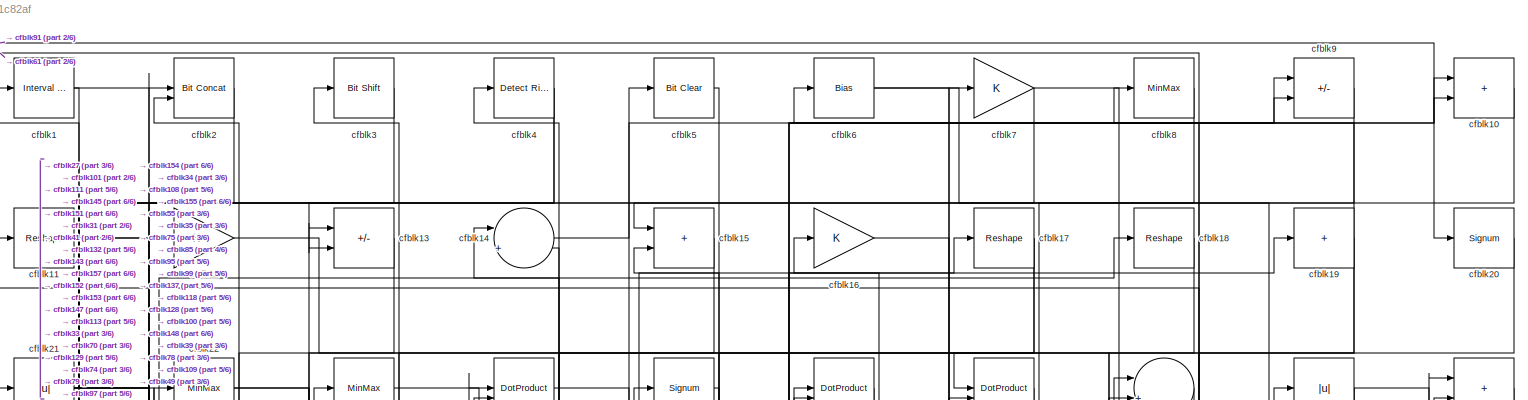
[diagram: root canvas - part 1/6, full width, top band]
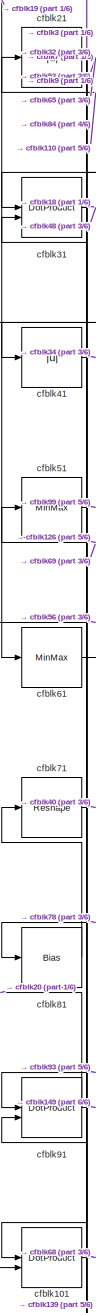
[diagram: root canvas - part 2/6, middle left region]
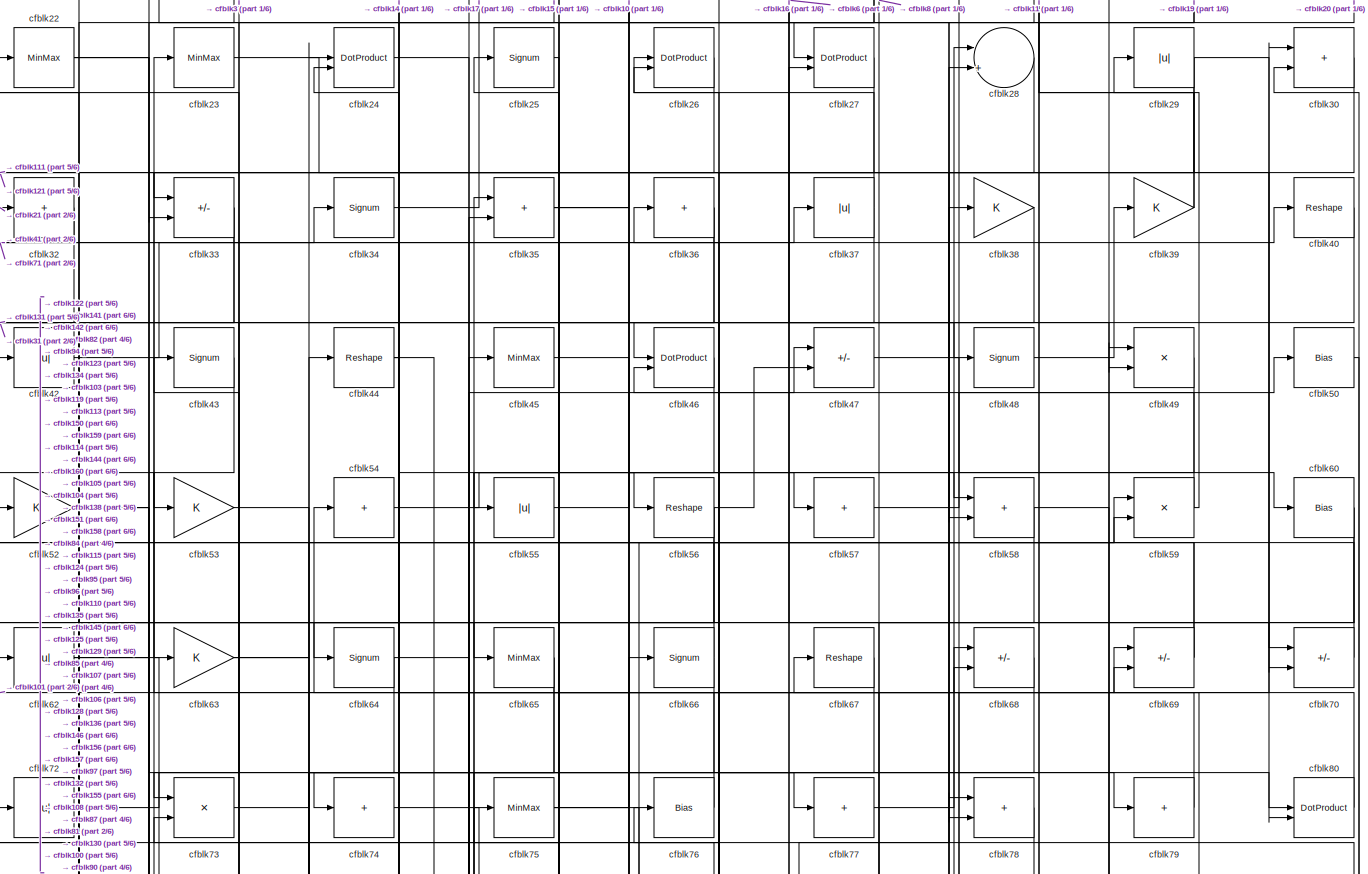
[diagram: root canvas - part 3/6, full width, top band]
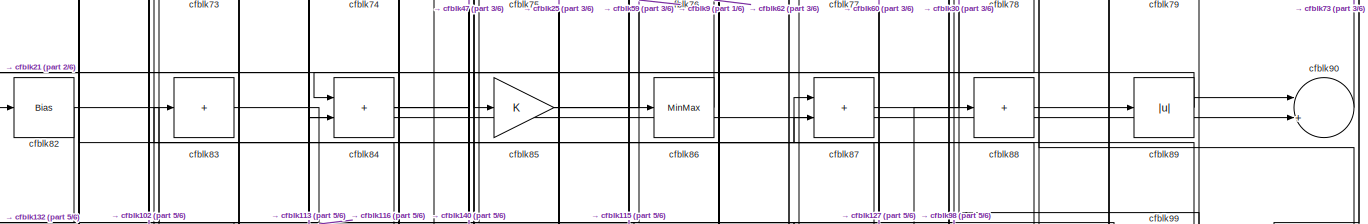
[diagram: root canvas - part 4/6, full width, middle band]
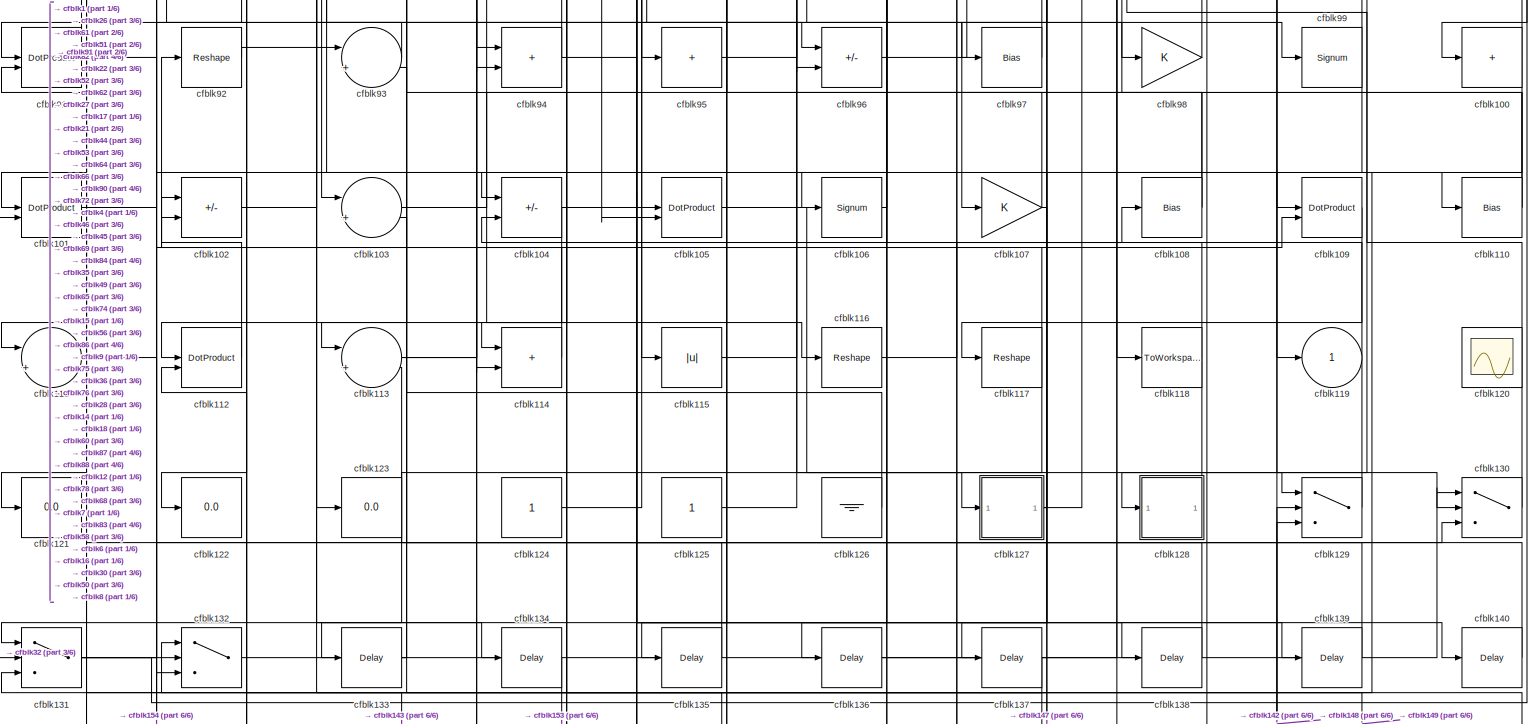
[diagram: root canvas - part 5/6, full width, bottom band]
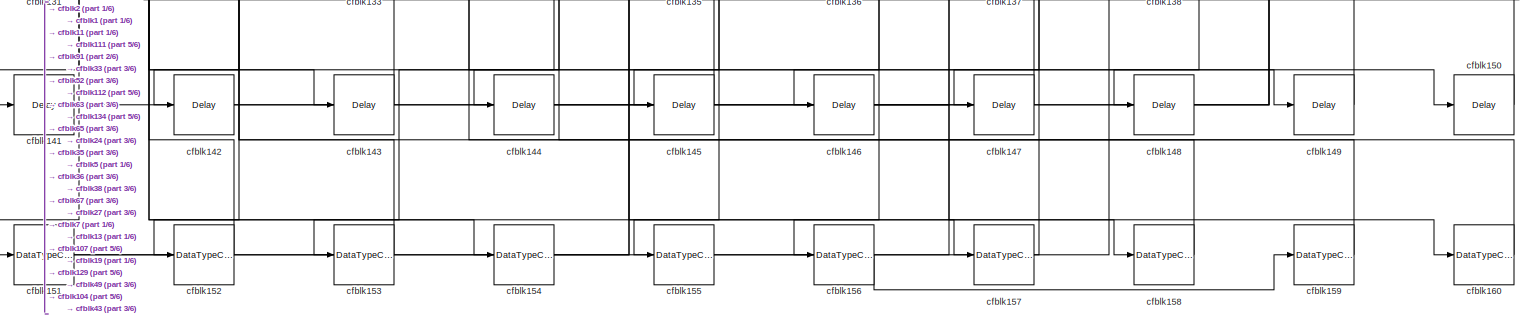
[diagram: root canvas - part 6/6, full width, bottom band]
MODEL slx_de579f1c82af
KIND model
CONFIG AbsTol = auto
CONFIG EnableMultiTasking = off
CONFIG FixedStep = auto
CONFIG MaxStep = auto
CONFIG MinStep = auto
CONFIG RelTol = 1e-3
CONFIG SampleTimeConstraint = Unconstrained
CONFIG SolverName = VariableStepAuto
CONFIG StartTime = 0.0
CONFIG StopTime = 10.0
BLOCK [Reference] cfblk1  REF=hdlsllib/Logic and Bit
Operations/Interval Test
  SourceBlock = hdlsllib/Logic and Bit\nOperations/Interval Test
  SourceType = Interval Test
BLOCK [Sum] cfblk10
  IconShape = rectangular
BLOCK [Sum] cfblk100
  IconShape = rectangular
  Inputs = +
BLOCK [DotProduct] cfblk101
  OutDataTypeStr = Inherit: Inherit via internal rule
BLOCK [Sum] cfblk102
  IconShape = rectangular
  Inputs = +-
BLOCK [Sum] cfblk103
  Inputs = |++
BLOCK [Sum] cfblk104
  IconShape = rectangular
  Inputs = +-
BLOCK [DotProduct] cfblk105
  OutDataTypeStr = Inherit: Inherit via internal rule
BLOCK [Signum] cfblk106
BLOCK [Gain] cfblk107
BLOCK [Bias] cfblk108
  Bias = 0.0
  SaturateOnIntegerOverflow = off
BLOCK [DotProduct] cfblk109
  OutDataTypeStr = Inherit: Inherit via internal rule
BLOCK [Reshape] cfblk11
BLOCK [Bias] cfblk110
  Bias = 0.0
  SaturateOnIntegerOverflow = off
BLOCK [Sum] cfblk111
  Inputs = |++
BLOCK [DotProduct] cfblk112
  OutDataTypeStr = Inherit: Inherit via internal rule
BLOCK [Sum] cfblk113
  Inputs = |++
BLOCK [Sum] cfblk114
  IconShape = rectangular
BLOCK [Abs] cfblk115
  SaturateOnIntegerOverflow = off
BLOCK [Reshape] cfblk116
BLOCK [Reshape] cfblk117
BLOCK [ToWorkspace] cfblk118
  MaxDataPoints = inf
  SampleTime = -1
  SaveFormat = Timeseries
  VariableName = simout
BLOCK [Outport] cfblk119
  VectorParamsAs1DForOutWhenUnconnected = off
BLOCK [Gain] cfblk12
BLOCK [Scope] cfblk120
  Floating = on
  NumInputPorts = 1
  ScopeSpecificationString = Simulink.scopes.TimeScopeBlockCfg('CurrentConfiguration', extmgr.ConfigurationSet(extmgr.Configuration('Core','General UI',true,'FigureColor',[0.156862745098039 0.156862745098039 0.156862745098039]),extmgr.Configuration('Core','Source UI',true),extmgr.Configuration('Sources','WiredSimulink',true,'DataLoggingVariableName','ScopeData1','DataLoggingSaveFormat','StructureWithTime','DataLoggingLimitDat...<+2713ch>
BLOCK [Display] cfblk121
  Decimation = 1
BLOCK [Display] cfblk122
  Decimation = 1
BLOCK [Display] cfblk123
  Decimation = 1
BLOCK [Constant] cfblk124
  SampleTime = -1
BLOCK [Constant] cfblk125
  SampleTime = -1
BLOCK [Ground] cfblk126
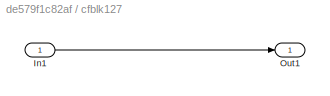
BLOCK [SubSystem] cfblk127
  LibrarySourceBlock = hdlsllib/Ports &\nSubsystems/Subsystem
BLOCK [Inport] cfblk127/In1
BLOCK [Outport] cfblk127/Out1
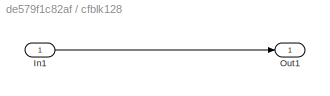
BLOCK [SubSystem] cfblk128
  LibrarySourceBlock = hdlsllib/Ports &\nSubsystems/Subsystem
BLOCK [Inport] cfblk128/In1
BLOCK [Outport] cfblk128/Out1
BLOCK [Switch] cfblk129
  InputSameDT = off
  SaturateOnIntegerOverflow = off
BLOCK [Sum] cfblk13
  IconShape = rectangular
  Inputs = +-
BLOCK [Switch] cfblk130
  InputSameDT = off
  SaturateOnIntegerOverflow = off
BLOCK [Switch] cfblk131
  InputSameDT = off
  SaturateOnIntegerOverflow = off
BLOCK [Switch] cfblk132
  InputSameDT = off
  SaturateOnIntegerOverflow = off
BLOCK [Delay] cfblk133
  InputPortMap = u0
  SampleTime = 1
BLOCK [Delay] cfblk134
  InputPortMap = u0
  SampleTime = 1
BLOCK [Delay] cfblk135
  InputPortMap = u0
  SampleTime = 1
BLOCK [Delay] cfblk136
  InputPortMap = u0
  SampleTime = 1
BLOCK [Delay] cfblk137
  InputPortMap = u0
  SampleTime = 1
BLOCK [Delay] cfblk138
  InputPortMap = u0
  SampleTime = 1
BLOCK [Delay] cfblk139
  InputPortMap = u0
  SampleTime = 1
BLOCK [Sum] cfblk14
  Inputs = |++
BLOCK [Delay] cfblk140
  InputPortMap = u0
  SampleTime = 1
BLOCK [Delay] cfblk141
  InputPortMap = u0
  SampleTime = 1
BLOCK [Delay] cfblk142
  InputPortMap = u0
  SampleTime = 1
BLOCK [Delay] cfblk143
  InputPortMap = u0
  SampleTime = 1
BLOCK [Delay] cfblk144
  InputPortMap = u0
  SampleTime = 1
BLOCK [Delay] cfblk145
  InputPortMap = u0
  SampleTime = 1
BLOCK [Delay] cfblk146
  InputPortMap = u0
  SampleTime = 1
BLOCK [Delay] cfblk147
  InputPortMap = u0
  SampleTime = 1
BLOCK [Delay] cfblk148
  InputPortMap = u0
  SampleTime = 1
BLOCK [Delay] cfblk149
  InputPortMap = u0
  SampleTime = 1
BLOCK [Sum] cfblk15
  IconShape = rectangular
BLOCK [Delay] cfblk150
  InputPortMap = u0
  SampleTime = 1
BLOCK [DataTypeConversion] cfblk151
  RndMeth = Floor
  SaturateOnIntegerOverflow = off
BLOCK [DataTypeConversion] cfblk152
  OutDataTypeStr = uint8
  RndMeth = Floor
  SaturateOnIntegerOverflow = off
BLOCK [DataTypeConversion] cfblk153
  OutDataTypeStr = uint8
  RndMeth = Floor
  SaturateOnIntegerOverflow = off
BLOCK [DataTypeConversion] cfblk154
  OutDataTypeStr = boolean
  RndMeth = Floor
  SaturateOnIntegerOverflow = off
BLOCK [DataTypeConversion] cfblk155
  OutDataTypeStr = uint8
  RndMeth = Floor
  SaturateOnIntegerOverflow = off
BLOCK [DataTypeConversion] cfblk156
  OutDataTypeStr = uint8
  RndMeth = Floor
  SaturateOnIntegerOverflow = off
BLOCK [DataTypeConversion] cfblk157
  OutDataTypeStr = uint8
  RndMeth = Floor
  SaturateOnIntegerOverflow = off
BLOCK [DataTypeConversion] cfblk158
  OutDataTypeStr = uint8
  RndMeth = Floor
  SaturateOnIntegerOverflow = off
BLOCK [DataTypeConversion] cfblk159
  OutDataTypeStr = uint8
  RndMeth = Floor
  SaturateOnIntegerOverflow = off
BLOCK [Gain] cfblk16
BLOCK [DataTypeConversion] cfblk160
  OutDataTypeStr = uint8
  RndMeth = Floor
  SaturateOnIntegerOverflow = off
BLOCK [Reshape] cfblk17
BLOCK [Reshape] cfblk18
BLOCK [Sum] cfblk19
  IconShape = rectangular
  Inputs = +
BLOCK [Reference] cfblk2  REF=hdlsllib/Logic and Bit
Operations/Bit Concat
  SourceBlock = hdlsllib/Logic and Bit\nOperations/Bit Concat
  SourceType = Bit Concat
BLOCK [Signum] cfblk20
BLOCK [Abs] cfblk21
  SaturateOnIntegerOverflow = off
BLOCK [MinMax] cfblk22
BLOCK [MinMax] cfblk23
BLOCK [DotProduct] cfblk24
  OutDataTypeStr = Inherit: Inherit via internal rule
BLOCK [Signum] cfblk25
BLOCK [DotProduct] cfblk26
  OutDataTypeStr = Inherit: Inherit via internal rule
BLOCK [DotProduct] cfblk27
  OutDataTypeStr = Inherit: Inherit via internal rule
BLOCK [Sum] cfblk28
  Inputs = |++
BLOCK [Abs] cfblk29
  SaturateOnIntegerOverflow = off
BLOCK [Reference] cfblk3  REF=hdlsllib/Logic and Bit
Operations/Bit Shift
  SourceBlock = hdlsllib/Logic and Bit\nOperations/Bit Shift
  SourceType = Bit Shift
BLOCK [Sum] cfblk30
  IconShape = rectangular
BLOCK [DotProduct] cfblk31
  OutDataTypeStr = Inherit: Inherit via internal rule
BLOCK [Sum] cfblk32
  IconShape = rectangular
  Inputs = +
BLOCK [Sum] cfblk33
  IconShape = rectangular
  Inputs = +-
BLOCK [Signum] cfblk34
BLOCK [Sum] cfblk35
  IconShape = rectangular
BLOCK [Sum] cfblk36
  IconShape = rectangular
  Inputs = +
BLOCK [Abs] cfblk37
  SaturateOnIntegerOverflow = off
BLOCK [Gain] cfblk38
BLOCK [Gain] cfblk39
BLOCK [Reference] cfblk4  REF=hdlsllib/Logic and Bit
Operations/Detect Rise
Nonnegative
  SourceBlock = hdlsllib/Logic and Bit\nOperations/Detect Rise\nNonnegative
  SourceType = Detect Rise Nonnegative
BLOCK [Reshape] cfblk40
BLOCK [Abs] cfblk41
  SaturateOnIntegerOverflow = off
BLOCK [Abs] cfblk42
  SaturateOnIntegerOverflow = off
BLOCK [Signum] cfblk43
BLOCK [Reshape] cfblk44
BLOCK [MinMax] cfblk45
BLOCK [DotProduct] cfblk46
  OutDataTypeStr = Inherit: Inherit via internal rule
BLOCK [Sum] cfblk47
  IconShape = rectangular
  Inputs = +-
BLOCK [Signum] cfblk48
BLOCK [Product] cfblk49
  Inputs = */
  RndMeth = Zero
  SaturateOnIntegerOverflow = on
BLOCK [Reference] cfblk5  REF=simulink/Logic and Bit
Operations/Bit Clear
  LibrarySourceBlock = hdlsllib/Logic and Bit\nOperations/Bit Clear
  SourceBlock = simulink/Logic and Bit\nOperations/Bit Clear
  SourceType = Bit Clear
BLOCK [Bias] cfblk50
  Bias = 0.0
  SaturateOnIntegerOverflow = off
BLOCK [MinMax] cfblk51
BLOCK [Gain] cfblk52
BLOCK [Gain] cfblk53
BLOCK [Sum] cfblk54
  IconShape = rectangular
  Inputs = +
BLOCK [Abs] cfblk55
  SaturateOnIntegerOverflow = off
BLOCK [Reshape] cfblk56
BLOCK [Sum] cfblk57
  IconShape = rectangular
  Inputs = +
BLOCK [Sum] cfblk58
  IconShape = rectangular
BLOCK [Product] cfblk59
  Inputs = */
  RndMeth = Zero
  SaturateOnIntegerOverflow = on
BLOCK [Bias] cfblk6
  Bias = 0.0
  SaturateOnIntegerOverflow = off
BLOCK [Bias] cfblk60
  Bias = 0.0
  SaturateOnIntegerOverflow = off
BLOCK [MinMax] cfblk61
BLOCK [Abs] cfblk62
  SaturateOnIntegerOverflow = off
BLOCK [Gain] cfblk63
BLOCK [Signum] cfblk64
BLOCK [MinMax] cfblk65
BLOCK [Signum] cfblk66
BLOCK [Reshape] cfblk67
BLOCK [Sum] cfblk68
  IconShape = rectangular
  Inputs = +-
BLOCK [Sum] cfblk69
  IconShape = rectangular
  Inputs = +-
BLOCK [Gain] cfblk7
BLOCK [Sum] cfblk70
  IconShape = rectangular
  Inputs = +-
BLOCK [Reshape] cfblk71
BLOCK [Abs] cfblk72
  SaturateOnIntegerOverflow = off
BLOCK [Product] cfblk73
  Inputs = */
  RndMeth = Zero
  SaturateOnIntegerOverflow = on
BLOCK [Sum] cfblk74
  IconShape = rectangular
  Inputs = +
BLOCK [MinMax] cfblk75
BLOCK [Bias] cfblk76
  Bias = 0.0
  SaturateOnIntegerOverflow = off
BLOCK [Sum] cfblk77
  IconShape = rectangular
  Inputs = +
BLOCK [Sum] cfblk78
  IconShape = rectangular
BLOCK [Sum] cfblk79
  IconShape = rectangular
  Inputs = +
BLOCK [MinMax] cfblk8
BLOCK [DotProduct] cfblk80
  OutDataTypeStr = Inherit: Inherit via internal rule
BLOCK [Bias] cfblk81
  Bias = 0.0
  SaturateOnIntegerOverflow = off
BLOCK [Bias] cfblk82
  Bias = 0.0
  SaturateOnIntegerOverflow = off
BLOCK [Sum] cfblk83
  IconShape = rectangular
  Inputs = +
BLOCK [Sum] cfblk84
  IconShape = rectangular
BLOCK [Gain] cfblk85
BLOCK [MinMax] cfblk86
BLOCK [Sum] cfblk87
  IconShape = rectangular
BLOCK [Sum] cfblk88
  IconShape = rectangular
  Inputs = +
BLOCK [Abs] cfblk89
  SaturateOnIntegerOverflow = off
BLOCK [Sum] cfblk9
  IconShape = rectangular
  Inputs = +-
BLOCK [Sum] cfblk90
  Inputs = |++
BLOCK [DotProduct] cfblk91
  OutDataTypeStr = Inherit: Inherit via internal rule
BLOCK [Reshape] cfblk92
BLOCK [Sum] cfblk93
  Inputs = |++
BLOCK [Sum] cfblk94
  IconShape = rectangular
BLOCK [Sum] cfblk95
  IconShape = rectangular
  Inputs = +
BLOCK [Sum] cfblk96
  IconShape = rectangular
  Inputs = +-
BLOCK [Bias] cfblk97
  Bias = 0.0
  SaturateOnIntegerOverflow = off
BLOCK [Gain] cfblk98
BLOCK [Signum] cfblk99
NET cfblk100:1 -> cfblk132:1, cfblk8:1
LINE cfblk101:1 -> cfblk68:2
LINE cfblk102:1 -> cfblk87:2
LINE cfblk103:1 -> cfblk45:1
NET cfblk104:1 -> cfblk112:1, cfblk69:2
LINE cfblk105:1 -> cfblk127:1
LINE cfblk106:1 -> cfblk46:2
NET cfblk107:1 -> cfblk147:1, cfblk36:1
NET cfblk108:1 -> cfblk15:2, cfblk68:1
LINE cfblk109:1 -> cfblk117:1
LINE cfblk10:1 -> cfblk15:1
NET cfblk110:1 -> cfblk21:1, cfblk75:1
LINE cfblk111:1 -> cfblk154:1
LINE cfblk112:1 -> cfblk92:1
NET cfblk113:1 -> cfblk44:1, cfblk90:2
LINE cfblk114:1 -> cfblk102:1
LINE cfblk115:1 -> cfblk86:1
LINE cfblk116:1 -> cfblk108:1
NET cfblk117:1 -> cfblk102:2, cfblk133:1
NET cfblk11:1 -> cfblk12:1, cfblk143:1
LINE cfblk124:1 -> cfblk35:1
LINE cfblk125:1 -> cfblk66:1
LINE cfblk126:1 -> cfblk51:1
LINE cfblk127/In1:1 -> cfblk127/Out1:1
NET cfblk127:1 -> cfblk87:1, cfblk88:1
LINE cfblk128/In1:1 -> cfblk128/Out1:1
LINE cfblk128:1 -> cfblk76:1
LINE cfblk129:1 -> cfblk4:1
LINE cfblk12:1 -> cfblk118:1
LINE cfblk130:1 -> cfblk69:1
NET cfblk131:1 -> cfblk109:2, cfblk130:3, cfblk30:2
LINE cfblk132:1 -> cfblk78:1
LINE cfblk133:1 -> cfblk103:2
LINE cfblk134:1 -> cfblk153:1
LINE cfblk135:1 -> cfblk93:2
LINE cfblk136:1 -> cfblk130:1
LINE cfblk137:1 -> cfblk131:3
LINE cfblk138:1 -> cfblk113:2
LINE cfblk139:1 -> cfblk91:2
LINE cfblk13:1 -> cfblk152:1
LINE cfblk140:1 -> cfblk105:1
LINE cfblk141:1 -> cfblk49:1
LINE cfblk142:1 -> cfblk129:2
LINE cfblk143:1 -> cfblk112:2
LINE cfblk144:1 -> cfblk27:2
LINE cfblk145:1 -> cfblk1:1
LINE cfblk146:1 -> cfblk160:1
LINE cfblk147:1 -> cfblk13:1
LINE cfblk148:1 -> cfblk129:3
LINE cfblk149:1 -> cfblk104:2
LINE cfblk14:1 -> cfblk10:1
LINE cfblk150:1 -> cfblk43:1
NET cfblk151:1 -> cfblk35:2, cfblk7:1
LINE cfblk152:1 -> cfblk2:1
LINE cfblk153:1 -> cfblk2:2
LINE cfblk154:1 -> cfblk5:1
LINE cfblk155:1 -> cfblk38:1
LINE cfblk156:1 -> cfblk159:1
LINE cfblk157:1 -> cfblk67:1
LINE cfblk158:1 -> cfblk52:1
LINE cfblk159:1 -> cfblk24:1
LINE cfblk15:1 -> cfblk74:1
LINE cfblk160:1 -> cfblk24:2
LINE cfblk16:1 -> cfblk70:2
NET cfblk17:1 -> cfblk113:1, cfblk33:2
LINE cfblk18:1 -> cfblk137:1
NET cfblk19:1 -> cfblk148:1, cfblk61:1, cfblk78:2
NET cfblk1:1 -> cfblk111:2, cfblk157:1
LINE cfblk20:1 -> cfblk55:1
NET cfblk21:1 -> cfblk32:1, cfblk53:1, cfblk65:1, cfblk84:2
NET cfblk22:1 -> cfblk134:1, cfblk80:2
LINE cfblk23:1 -> cfblk70:1
LINE cfblk24:1 -> cfblk158:1
LINE cfblk25:1 -> cfblk85:1
LINE cfblk26:1 -> cfblk111:1
LINE cfblk27:1 -> cfblk103:1
LINE cfblk28:1 -> cfblk136:1
NET cfblk29:1 -> cfblk33:1, cfblk58:2, cfblk80:1
LINE cfblk2:1 -> cfblk151:1
LINE cfblk30:1 -> cfblk121:1
NET cfblk31:1 -> cfblk18:1, cfblk48:1
LINE cfblk32:1 -> cfblk131:2
NET cfblk33:1 -> cfblk141:1, cfblk142:1
LINE cfblk34:1 -> cfblk17:1
NET cfblk35:1 -> cfblk19:1, cfblk58:1
NET cfblk36:1 -> cfblk145:1, cfblk42:1
NET cfblk37:1 -> cfblk26:2, cfblk73:1
LINE cfblk38:1 -> cfblk146:1
NET cfblk39:1 -> cfblk11:1, cfblk6:1
LINE cfblk3:1 -> cfblk101:1
LINE cfblk40:1 -> cfblk46:1
LINE cfblk41:1 -> cfblk34:1
LINE cfblk42:1 -> cfblk37:1
LINE cfblk43:1 -> cfblk63:1
NET cfblk44:1 -> cfblk105:2, cfblk64:1
LINE cfblk45:1 -> cfblk129:1
LINE cfblk46:1 -> cfblk114:1
LINE cfblk47:1 -> cfblk60:1
LINE cfblk48:1 -> cfblk39:1
LINE cfblk49:1 -> cfblk95:1
NET cfblk4:1 -> cfblk132:2, cfblk13:2
LINE cfblk50:1 -> cfblk100:1
LINE cfblk51:1 -> cfblk99:1
NET cfblk52:1 -> cfblk104:1, cfblk123:1
LINE cfblk53:1 -> cfblk94:1
LINE cfblk54:1 -> cfblk56:1
LINE cfblk55:1 -> cfblk57:1
NET cfblk56:1 -> cfblk101:2, cfblk135:1, cfblk47:2
LINE cfblk57:1 -> cfblk50:1
NET cfblk58:1 -> cfblk122:1, cfblk130:2
NET cfblk59:1 -> cfblk26:1, cfblk29:1
LINE cfblk5:1 -> cfblk155:1
NET cfblk60:1 -> cfblk82:1, cfblk97:1
LINE cfblk61:1 -> cfblk110:1
NET cfblk62:1 -> cfblk119:1, cfblk96:2
NET cfblk63:1 -> cfblk150:1, cfblk59:2
NET cfblk64:1 -> cfblk138:1, cfblk94:2
NET cfblk65:1 -> cfblk115:1, cfblk144:1
NET cfblk66:1 -> cfblk114:2, cfblk25:1
LINE cfblk67:1 -> cfblk156:1
LINE cfblk68:1 -> cfblk106:1
NET cfblk69:1 -> cfblk22:1, cfblk31:2
NET cfblk6:1 -> cfblk109:1, cfblk49:2
LINE cfblk70:1 -> cfblk3:1
LINE cfblk71:1 -> cfblk40:1
LINE cfblk72:1 -> cfblk79:1
LINE cfblk73:1 -> cfblk77:1
LINE cfblk74:1 -> cfblk96:1
NET cfblk75:1 -> cfblk107:1, cfblk10:2
LINE cfblk76:1 -> cfblk23:1
LINE cfblk77:1 -> cfblk28:1
LINE cfblk78:1 -> cfblk81:1
LINE cfblk79:1 -> cfblk14:1
NET cfblk7:1 -> cfblk128:1, cfblk31:1
LINE cfblk80:1 -> cfblk54:1
LINE cfblk81:1 -> cfblk71:1
NET cfblk82:1 -> cfblk132:3, cfblk98:1
LINE cfblk83:1 -> cfblk116:1
NET cfblk84:1 -> cfblk140:1, cfblk47:1
NET cfblk85:1 -> cfblk59:1, cfblk9:2
LINE cfblk86:1 -> cfblk62:1
LINE cfblk87:1 -> cfblk30:1
LINE cfblk88:1 -> cfblk89:1
NET cfblk89:1 -> cfblk84:1, cfblk90:1
LINE cfblk8:1 -> cfblk27:1
LINE cfblk90:1 -> cfblk73:2
NET cfblk91:1 -> cfblk149:1, cfblk20:1
LINE cfblk92:1 -> cfblk93:1
LINE cfblk93:1 -> cfblk91:1
NET cfblk94:1 -> cfblk139:1, cfblk72:1
LINE cfblk95:1 -> cfblk9:1
LINE cfblk96:1 -> cfblk28:2
LINE cfblk97:1 -> cfblk14:2
LINE cfblk98:1 -> cfblk83:1
NET cfblk99:1 -> cfblk131:1, cfblk16:1
LINE cfblk9:1 -> cfblk41:1
note: NET lines group one-source signal fan-out (src -> all destinations, sorted); 1:1 wires keep LINE
